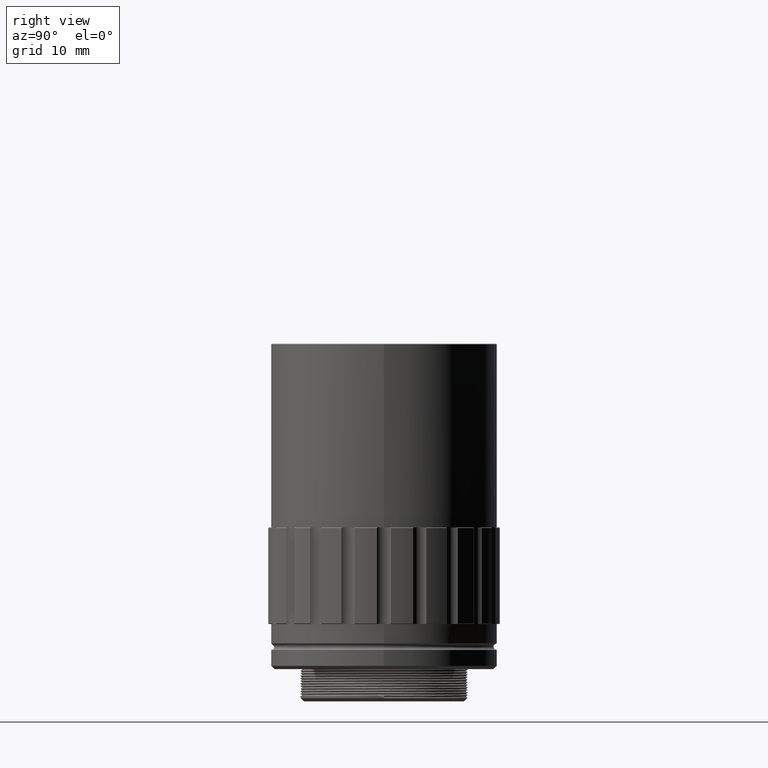
[diagram: clean part render]
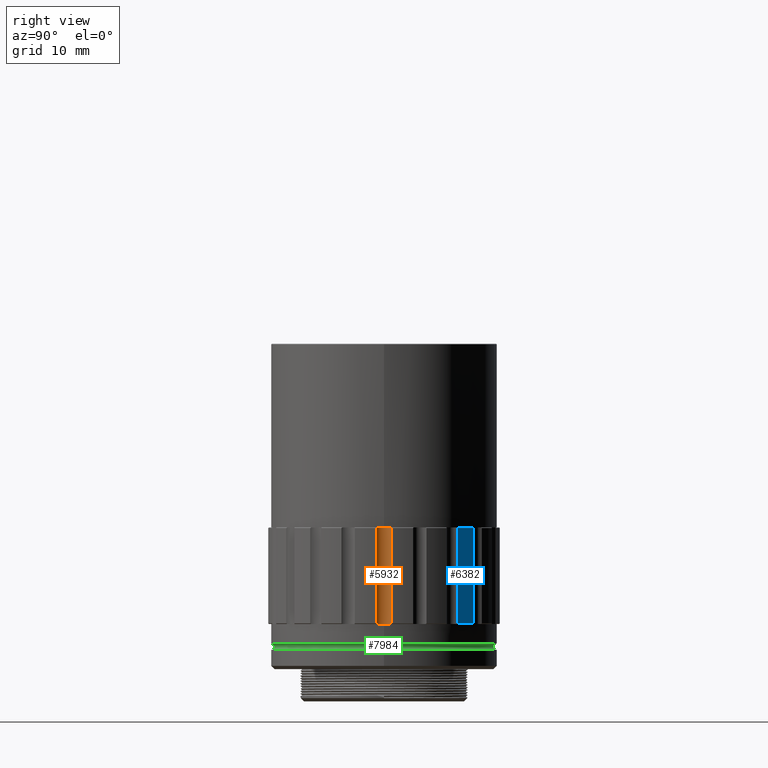
[diagram: same view with three faces highlighted in distinct colors, each labeled with its STEP entity id]
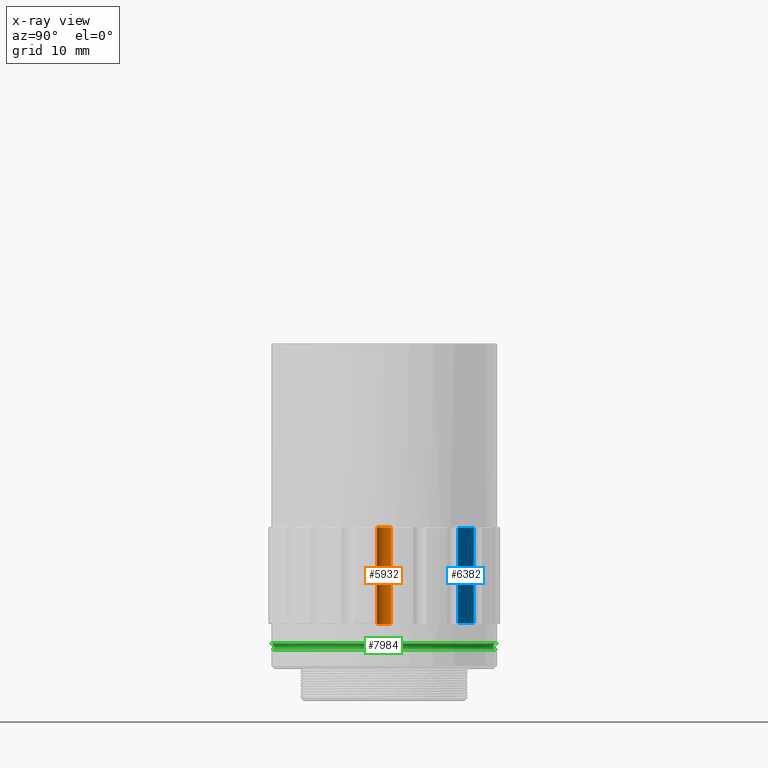
[diagram: x-ray of the same camera — body ghosted, the three highlighted faces saturated]
A machine part, right view with three faces highlighted in distinct colors.
The next image is the same camera in x-ray (body ghosted, the three faces saturated) — at least one of them is partly hidden behind the body in this view.
Their STEP definitions:

[orange] entity #5932 — the highlighted cylindrical surface (edge-blend (fillet) strip) has radius 1.5 mm, axis along (0, 0, -1).
#641 = VECTOR ( 'NONE', #1183, 1000.000000000000000 ) ;
#985 = ORIENTED_EDGE ( 'NONE', *, *, #2607, .F. ) ;
#1180 = ORIENTED_EDGE ( 'NONE', *, *, #3087, .F. ) ;
#1183 = DIRECTION ( 'NONE',  ( 0.000000000000000000, 0.000000000000000000, -1.000000000000000000 ) ) ;
#1315 = CARTESIAN_POINT ( 'NONE',  ( 17.93407129262809363, -1.056348071963569391, 26.43486919111534661 ) ) ;
#1391 = DIRECTION ( 'NONE',  ( 0.000000000000000000, 0.000000000000000000, -1.000000000000000000 ) ) ;
#1401 = CARTESIAN_POINT ( 'NONE',  ( 17.87263157894823706, -0.9894647256045044914, 26.49999999999961275 ) ) ;
#1448 = DIRECTION ( 'NONE',  ( -1.000000000000000000, 0.000000000000000000, 0.000000000000000000 ) ) ;
#1472 = ORIENTED_EDGE ( 'NONE', *, *, #5765, .F. ) ;
#1481 = CIRCLE ( 'NONE', #8057, 1.500000000000001332 ) ;
#1493 = CARTESIAN_POINT ( 'NONE',  ( 17.50000000000000000, -2.143131898507868248E-15, 26.49999999999988631 ) ) ;
#1502 = CARTESIAN_POINT ( 'NONE',  ( 17.96710526315785472, -1.087717087576306474, 19.50000000000000000 ) ) ;
#1698 = VERTEX_POINT ( 'NONE', #3307 ) ;
#1729 = CARTESIAN_POINT ( 'NONE',  ( 17.96710526315785472, -1.087717087576306474, 11.59999999989490149 ) ) ;
#1766 = VERTEX_POINT ( 'NONE', #1729 ) ;
#1793 = CARTESIAN_POINT ( 'NONE',  ( 17.93407114907005351, 1.056347905747433868, 26.43486934445787284 ) ) ;
#1881 = CARTESIAN_POINT ( 'NONE',  ( 17.96710526315867895, 1.087717087576410391, 26.40000000000122427 ) ) ;
#2487 = CARTESIAN_POINT ( 'NONE',  ( 17.87263157895017329, 0.9894647256058052287, 26.49999999999999645 ) ) ;
#2496 = CIRCLE ( 'NONE', #4998, 1.500000000000001332 ) ;
#2524 = DIRECTION ( 'NONE',  ( -1.000000000000000000, 9.769962616701377556E-15, 0.000000000000000000 ) ) ;
#2531 = CARTESIAN_POINT ( 'NONE',  ( 17.50000000000000000, 0.000000000000000000, 11.50000000000015099 ) ) ;
#2564 = CARTESIAN_POINT ( 'NONE',  ( 17.96710526308250877, 1.087717087524555426, 11.59999999981580920 ) ) ;
#2607 = EDGE_CURVE ( 'NONE', #8189, #3171, #3051, .T. ) ;
#2653 = CARTESIAN_POINT ( 'NONE',  ( 17.93407129247470522, 1.056348071805469413, 11.56513080872099053 ) ) ;
#2808 = DIRECTION ( 'NONE',  ( -0.000000000000000000, -0.000000000000000000, 1.000000000000000000 ) ) ;
#2973 = EDGE_CURVE ( 'NONE', #4973, #1698, #4302, .T. ) ;
#3031 = VERTEX_POINT ( 'NONE', #2531 ) ;
#3051 = B_SPLINE_CURVE_WITH_KNOTS ( 'NONE', 3,
 ( #5284, #1315, #5365, #1401 ),
 .UNSPECIFIED., .F., .F.,
 ( 4, 4 ),
 ( 0.000000000000000000, 1.000000000000000000 ),
 .UNSPECIFIED. ) ;
#3087 = EDGE_CURVE ( 'NONE', #5479, #4973, #1481, .T. ) ;
#3171 = VERTEX_POINT ( 'NONE', #3922 ) ;
#3307 = CARTESIAN_POINT ( 'NONE',  ( 17.96710526315867895, 1.087717087576410391, 26.40000000000122427 ) ) ;
#3311 = EDGE_CURVE ( 'NONE', #5861, #1766, #4074, .T. ) ;
#3355 = CARTESIAN_POINT ( 'NONE',  ( 17.96710526308250877, 1.087717087524555426, 11.59999999981580920 ) ) ;
#3519 = CARTESIAN_POINT ( 'NONE',  ( 17.96710526315785472, -1.087717087576306474, 11.59999999989490149 ) ) ;
#3689 = AXIS2_PLACEMENT_3D ( 'NONE', #3984, #2808, #5990 ) ;
#3753 = CARTESIAN_POINT ( 'NONE',  ( 17.96710526315785472, 1.087717087576310915, 19.50000000000000000 ) ) ;
#3880 = DIRECTION ( 'NONE',  ( -1.000000000000000000, 0.000000000000000000, 0.000000000000000000 ) ) ;
#3888 = EDGE_CURVE ( 'NONE', #7245, #6233, #4170, .T. ) ;
#3921 = EDGE_LOOP ( 'NONE', ( #7685, #985, #7741, #6689, #8637, #6279, #4784, #1472, #8317, #1180 ) ) ;
#3922 = CARTESIAN_POINT ( 'NONE',  ( 17.87263157894823706, -0.9894647256045044914, 26.49999999999961275 ) ) ;
#3926 = CARTESIAN_POINT ( 'NONE',  ( 17.90258814791645037, 1.023596402037885156, 11.53179747544051104 ) ) ;
#3984 = CARTESIAN_POINT ( 'NONE',  ( 19.00000000000000000, 0.000000000000000000, 11.50000000000000000 ) ) ;
#4074 = B_SPLINE_CURVE_WITH_KNOTS ( 'NONE', 3,
 ( #6852, #6278, #8227, #3519 ),
 .UNSPECIFIED., .F., .F.,
 ( 4, 4 ),
 ( 0.000000000000000000, 1.000000000000000000 ),
 .UNSPECIFIED. ) ;
#4170 = B_SPLINE_CURVE_WITH_KNOTS ( 'NONE', 3,
 ( #3355, #2653, #3926, #5356 ),
 .UNSPECIFIED., .F., .F.,
 ( 4, 4 ),
 ( 0.000000000000000000, 1.000000000000000000 ),
 .UNSPECIFIED. ) ;
#4302 = B_SPLINE_CURVE_WITH_KNOTS ( 'NONE', 3,
 ( #2487, #5667, #1793, #1881 ),
 .UNSPECIFIED., .F., .F.,
 ( 4, 4 ),
 ( 0.000000000000000000, 1.000000000000000000 ),
 .UNSPECIFIED. ) ;
#4379 = CARTESIAN_POINT ( 'NONE',  ( 17.96710526312848799, -1.087717087547843242, 26.40000000003131575 ) ) ;
#4413 = LINE ( 'NONE', #3753, #641 ) ;
#4455 = CARTESIAN_POINT ( 'NONE',  ( 17.87263157894888010, -0.9894647256047232053, 11.50000000000074252 ) ) ;
#4784 = ORIENTED_EDGE ( 'NONE', *, *, #3888, .F. ) ;
#4867 = EDGE_CURVE ( 'NONE', #3031, #5861, #7471, .T. ) ;
#4907 = EDGE_CURVE ( 'NONE', #1766, #8189, #6788, .T. ) ;
#4973 = VERTEX_POINT ( 'NONE', #5380 ) ;
#4998 = AXIS2_PLACEMENT_3D ( 'NONE', #6733, #8156, #1448 ) ;
#5277 = DIRECTION ( 'NONE',  ( -1.000000000000000000, 0.000000000000000000, 0.000000000000000000 ) ) ;
#5284 = CARTESIAN_POINT ( 'NONE',  ( 17.96710526312848799, -1.087717087547843242, 26.40000000003131575 ) ) ;
#5356 = CARTESIAN_POINT ( 'NONE',  ( 17.87263157894919274, 0.9894647256049088346, 11.50000000000037481 ) ) ;
#5358 = CARTESIAN_POINT ( 'NONE',  ( 19.00000000000000000, 0.000000000000000000, 19.50000000000000000 ) ) ;
#5365 = CARTESIAN_POINT ( 'NONE',  ( 17.90258814803955900, -1.023596402179387077, 26.46820252442768506 ) ) ;
#5380 = CARTESIAN_POINT ( 'NONE',  ( 17.87263157895017329, 0.9894647256058052287, 26.49999999999999645 ) ) ;
#5479 = VERTEX_POINT ( 'NONE', #1493 ) ;
#5667 = CARTESIAN_POINT ( 'NONE',  ( 17.90258800355773161, 1.023596237560233435, 26.46820267779083480 ) ) ;
#5765 = EDGE_CURVE ( 'NONE', #1698, #7245, #4413, .T. ) ;
#5782 = VECTOR ( 'NONE', #6129, 1000.000000000000000 ) ;
#5861 = VERTEX_POINT ( 'NONE', #4455 ) ;
#5932 = ADVANCED_FACE ( 'NONE', ( #7354 ), #6600, .F. ) ;
#5990 = DIRECTION ( 'NONE',  ( -1.000000000000000000, 0.000000000000000000, 0.000000000000000000 ) ) ;
#6127 = AXIS2_PLACEMENT_3D ( 'NONE', #7215, #7082, #2524 ) ;
#6129 = DIRECTION ( 'NONE',  ( -0.000000000000000000, -0.000000000000000000, 1.000000000000000000 ) ) ;
#6233 = VERTEX_POINT ( 'NONE', #7876 ) ;
#6278 = CARTESIAN_POINT ( 'NONE',  ( 17.90258745378389804, -1.023595611167186670, 11.53179673865335531 ) ) ;
#6279 = ORIENTED_EDGE ( 'NONE', *, *, #6314, .F. ) ;
#6314 = EDGE_CURVE ( 'NONE', #6233, #3031, #8540, .T. ) ;
#6546 = AXIS2_PLACEMENT_3D ( 'NONE', #5358, #1391, #5277 ) ;
#6600 = CYLINDRICAL_SURFACE ( 'NONE', #6546, 1.500000000000001332 ) ;
#6689 = ORIENTED_EDGE ( 'NONE', *, *, #3311, .F. ) ;
#6733 = CARTESIAN_POINT ( 'NONE',  ( 19.00000000000000000, 0.000000000000000000, 26.49999999999977263 ) ) ;
#6788 = LINE ( 'NONE', #1502, #5782 ) ;
#6852 = CARTESIAN_POINT ( 'NONE',  ( 17.87263157894888010, -0.9894647256047232053, 11.50000000000074252 ) ) ;
#6985 = EDGE_CURVE ( 'NONE', #3171, #5479, #2496, .T. ) ;
#7082 = DIRECTION ( 'NONE',  ( -0.000000000000000000, -0.000000000000000000, 1.000000000000000000 ) ) ;
#7215 = CARTESIAN_POINT ( 'NONE',  ( 19.00000000000000000, 0.000000000000000000, 11.50000000000030198 ) ) ;
#7245 = VERTEX_POINT ( 'NONE', #2564 ) ;
#7269 = DIRECTION ( 'NONE',  ( 0.000000000000000000, 0.000000000000000000, -1.000000000000000000 ) ) ;
#7354 = FACE_OUTER_BOUND ( 'NONE', #3921, .T. ) ;
#7471 = CIRCLE ( 'NONE', #3689, 1.500000000000001332 ) ;
#7685 = ORIENTED_EDGE ( 'NONE', *, *, #6985, .F. ) ;
#7741 = ORIENTED_EDGE ( 'NONE', *, *, #4907, .F. ) ;
#7876 = CARTESIAN_POINT ( 'NONE',  ( 17.87263157894919274, 0.9894647256049088346, 11.50000000000037481 ) ) ;
#8007 = CARTESIAN_POINT ( 'NONE',  ( 19.00000000000000000, 0.000000000000000000, 26.50000000000000000 ) ) ;
#8057 = AXIS2_PLACEMENT_3D ( 'NONE', #8007, #7269, #3880 ) ;
#8156 = DIRECTION ( 'NONE',  ( 0.000000000000000000, 0.000000000000000000, -1.000000000000000000 ) ) ;
#8189 = VERTEX_POINT ( 'NONE', #4379 ) ;
#8227 = CARTESIAN_POINT ( 'NONE',  ( 17.93407060271909614, -1.056347273207234538, 11.56513007196882192 ) ) ;
#8317 = ORIENTED_EDGE ( 'NONE', *, *, #2973, .F. ) ;
#8540 = CIRCLE ( 'NONE', #6127, 1.500000000000001332 ) ;
#8637 = ORIENTED_EDGE ( 'NONE', *, *, #4867, .F. ) ;

[blue] entity #6382 — the highlighted cylindrical surface (partial cylindrical patch) has radius 18 mm, axis along (0, 0, -1).
#62 = CARTESIAN_POINT ( 'NONE',  ( 0.000000000000000000, 0.000000000000000000, 11.59999999979158680 ) ) ;
#440 = CARTESIAN_POINT ( 'NONE',  ( 11.44078110899833511, 13.89634943486910856, 19.50000000000000000 ) ) ;
#598 = VECTOR ( 'NONE', #2105, 1000.000000000000000 ) ;
#944 = ORIENTED_EDGE ( 'NONE', *, *, #5818, .T. ) ;
#1416 = CIRCLE ( 'NONE', #5182, 18.00000000000000711 ) ;
#1872 = DIRECTION ( 'NONE',  ( -1.000000000000000000, 0.000000000000000000, 0.000000000000000000 ) ) ;
#1983 = DIRECTION ( 'NONE',  ( -0.000000000000000000, -0.000000000000000000, 1.000000000000000000 ) ) ;
#2105 = DIRECTION ( 'NONE',  ( 0.000000000000000000, 0.000000000000000000, -1.000000000000000000 ) ) ;
#2129 = EDGE_CURVE ( 'NONE', #4031, #7791, #8314, .T. ) ;
#2525 = CARTESIAN_POINT ( 'NONE',  ( 11.44078110898088418, 13.89634943484941587, 11.59999999987113029 ) ) ;
#3233 = ORIENTED_EDGE ( 'NONE', *, *, #7918, .T. ) ;
#3572 = ORIENTED_EDGE ( 'NONE', *, *, #2129, .F. ) ;
#4031 = VERTEX_POINT ( 'NONE', #6895 ) ;
#4550 = LINE ( 'NONE', #440, #5513 ) ;
#4691 = DIRECTION ( 'NONE',  ( -1.000000000000000000, 0.000000000000000000, -1.927470528862633653E-16 ) ) ;
#4771 = ORIENTED_EDGE ( 'NONE', *, *, #8244, .T. ) ;
#4942 = VERTEX_POINT ( 'NONE', #7372 ) ;
#5182 = AXIS2_PLACEMENT_3D ( 'NONE', #62, #1983, #6083 ) ;
#5183 = DIRECTION ( 'NONE',  ( 0.000000000000000000, 0.000000000000000000, -1.000000000000000000 ) ) ;
#5296 = DIRECTION ( 'NONE',  ( -9.637352644313597206E-17, -0.000000000000000000, 1.000000000000000000 ) ) ;
#5418 = LINE ( 'NONE', #8114, #598 ) ;
#5513 = VECTOR ( 'NONE', #7230, 1000.000000000000000 ) ;
#5572 = EDGE_LOOP ( 'NONE', ( #4771, #3233, #944, #3572 ) ) ;
#5701 = AXIS2_PLACEMENT_3D ( 'NONE', #8542, #5183, #1872 ) ;
#5818 = EDGE_CURVE ( 'NONE', #7227, #7791, #4550, .T. ) ;
#6083 = DIRECTION ( 'NONE',  ( -1.000000000000000000, 8.881784197001252323E-15, 0.000000000000000000 ) ) ;
#6126 = CARTESIAN_POINT ( 'NONE',  ( -4.484412841066000153E-12, -3.552713678800500929E-12, 26.39999999999546176 ) ) ;
#6188 = AXIS2_PLACEMENT_3D ( 'NONE', #6126, #5296, #4691 ) ;
#6382 = ADVANCED_FACE ( 'NONE', ( #7704 ), #6506, .T. ) ;
#6506 = CYLINDRICAL_SURFACE ( 'NONE', #5701, 18.00000000000000711 ) ;
#6895 = CARTESIAN_POINT ( 'NONE',  ( 13.89634943486971252, 11.44078110899739897, 26.39999999999499636 ) ) ;
#7227 = VERTEX_POINT ( 'NONE', #2525 ) ;
#7230 = DIRECTION ( 'NONE',  ( -0.000000000000000000, -0.000000000000000000, 1.000000000000000000 ) ) ;
#7372 = CARTESIAN_POINT ( 'NONE',  ( 13.89634943483800811, 11.44078110891143041, 11.59999999981826591 ) ) ;
#7704 = FACE_OUTER_BOUND ( 'NONE', #5572, .T. ) ;
#7791 = VERTEX_POINT ( 'NONE', #7823 ) ;
#7823 = CARTESIAN_POINT ( 'NONE',  ( 11.44078110895522471, 13.89634943486195873, 26.40000000002785185 ) ) ;
#7918 = EDGE_CURVE ( 'NONE', #4942, #7227, #1416, .T. ) ;
#8114 = CARTESIAN_POINT ( 'NONE',  ( 13.89634943486910679, 11.44078110899833689, 19.50000000000000000 ) ) ;
#8244 = EDGE_CURVE ( 'NONE', #4031, #4942, #5418, .T. ) ;
#8314 = CIRCLE ( 'NONE', #6188, 18.00000000000453326 ) ;
#8542 = CARTESIAN_POINT ( 'NONE',  ( 0.000000000000000000, 0.000000000000000000, 19.50000000000000000 ) ) ;

[green] entity #7984 — the highlighted toroidal blend (fillet) surface has major radius 17.5 mm and minor (blend) radius 0.5 mm.
#119 = CIRCLE ( 'NONE', #3885, 17.50000000000000000 ) ;
#388 = EDGE_CURVE ( 'NONE', #1439, #1439, #119, .T. ) ;
#644 = ORIENTED_EDGE ( 'NONE', *, *, #5442, .F. ) ;
#1176 = DIRECTION ( 'NONE',  ( 0.000000000000000000, 0.000000000000000000, 1.000000000000000000 ) ) ;
#1262 = CARTESIAN_POINT ( 'NONE',  ( -0.1659222198666378545, -17.49921340566353933, 7.500000000000001776 ) ) ;
#1439 = VERTEX_POINT ( 'NONE', #2094 ) ;
#1548 = FACE_OUTER_BOUND ( 'NONE', #8138, .T. ) ;
#2094 = CARTESIAN_POINT ( 'NONE',  ( 17.50000000000000000, 0.000000000000000000, 8.500000000000000000 ) ) ;
#2304 = AXIS2_PLACEMENT_3D ( 'NONE', #6070, #6649, #8652 ) ;
#2570 = CARTESIAN_POINT ( 'NONE',  ( 0.000000000000000000, 0.000000000000000000, 8.500000000000000000 ) ) ;
#3506 = DIRECTION ( 'NONE',  ( 2.478065004565925913E-17, -2.349625877459883798E-19, 1.000000000000000000 ) ) ;
#3885 = AXIS2_PLACEMENT_3D ( 'NONE', #2570, #1176, #5231 ) ;
#4490 = TOROIDAL_SURFACE ( 'NONE', #5876, 17.50000000000000000, 0.4999999999999995559 ) ;
#4662 = EDGE_LOOP ( 'NONE', ( #6201 ) ) ;
#5231 = DIRECTION ( 'NONE',  ( 1.000000000000000000, 0.000000000000000000, 0.000000000000000000 ) ) ;
#5442 = EDGE_CURVE ( 'NONE', #5707, #5707, #6220, .T. ) ;
#5470 = CARTESIAN_POINT ( 'NONE',  ( 1.084202172485504434E-15, 0.000000000000000000, 8.000000000000000000 ) ) ;
#5556 = FACE_OUTER_BOUND ( 'NONE', #4662, .T. ) ;
#5707 = VERTEX_POINT ( 'NONE', #1262 ) ;
#5876 = AXIS2_PLACEMENT_3D ( 'NONE', #5470, #3506, #8164 ) ;
#6070 = CARTESIAN_POINT ( 'NONE',  ( 1.070649645329435629E-15, 0.000000000000000000, 7.500000000000001776 ) ) ;
#6201 = ORIENTED_EDGE ( 'NONE', *, *, #388, .F. ) ;
#6220 = CIRCLE ( 'NONE', #2304, 17.50000000000000000 ) ;
#6649 = DIRECTION ( 'NONE',  ( -2.478065004565925913E-17, 2.349625877459883798E-19, -1.000000000000000000 ) ) ;
#7984 = ADVANCED_FACE ( 'NONE', ( #5556, #1548 ), #4490, .F. ) ;
#8138 = EDGE_LOOP ( 'NONE', ( #644 ) ) ;
#8164 = DIRECTION ( 'NONE',  ( 1.000000000000000000, 5.822525660755845258E-36, -2.478065004565926221E-17 ) ) ;
#8652 = DIRECTION ( 'NONE',  ( -0.009481269706665082855, -0.9999550517522022286, 0.000000000000000000 ) ) ;